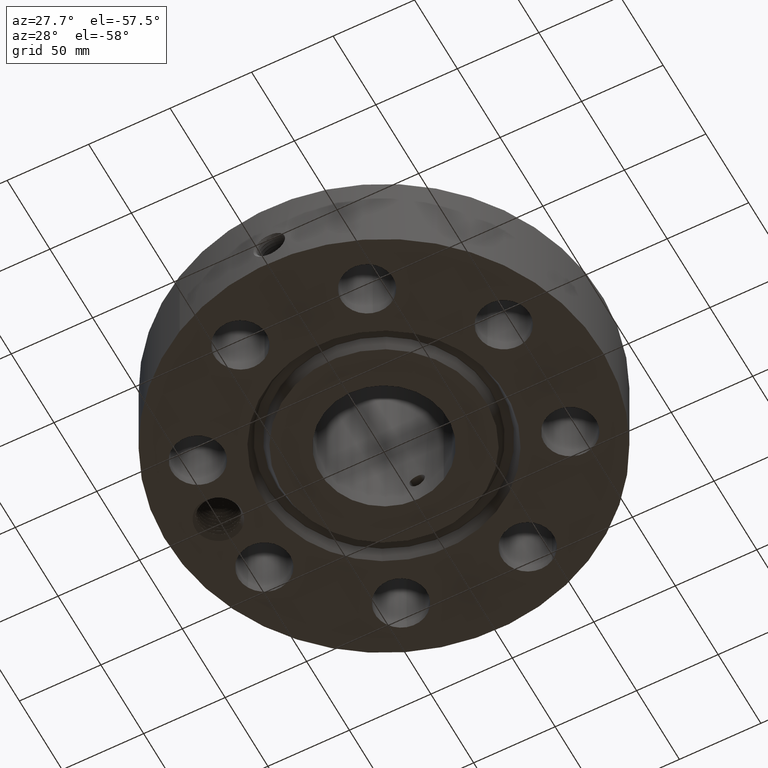
[diagram: clean part render]
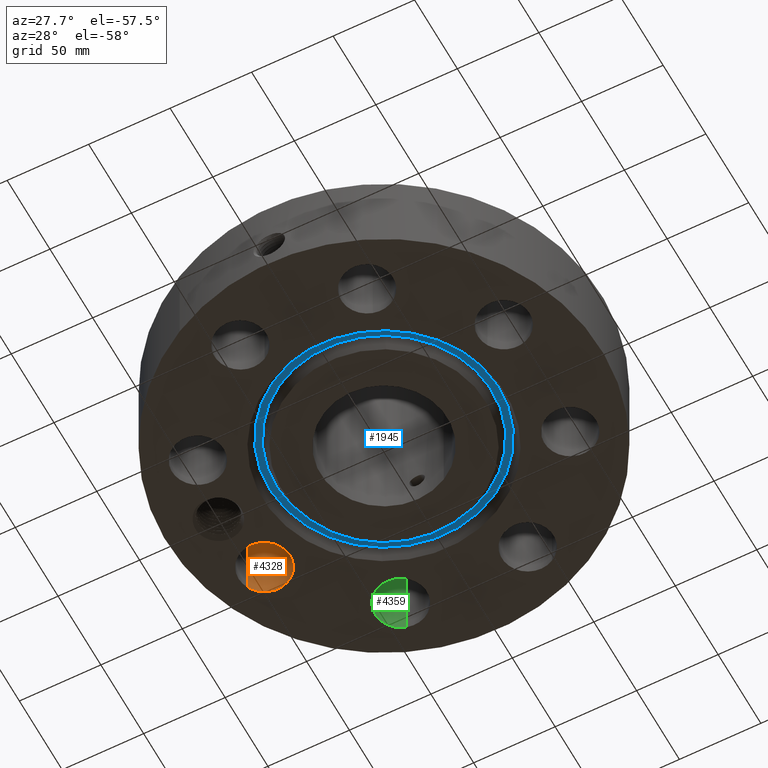
[diagram: same view with three faces highlighted in distinct colors, each labeled with its STEP entity id]
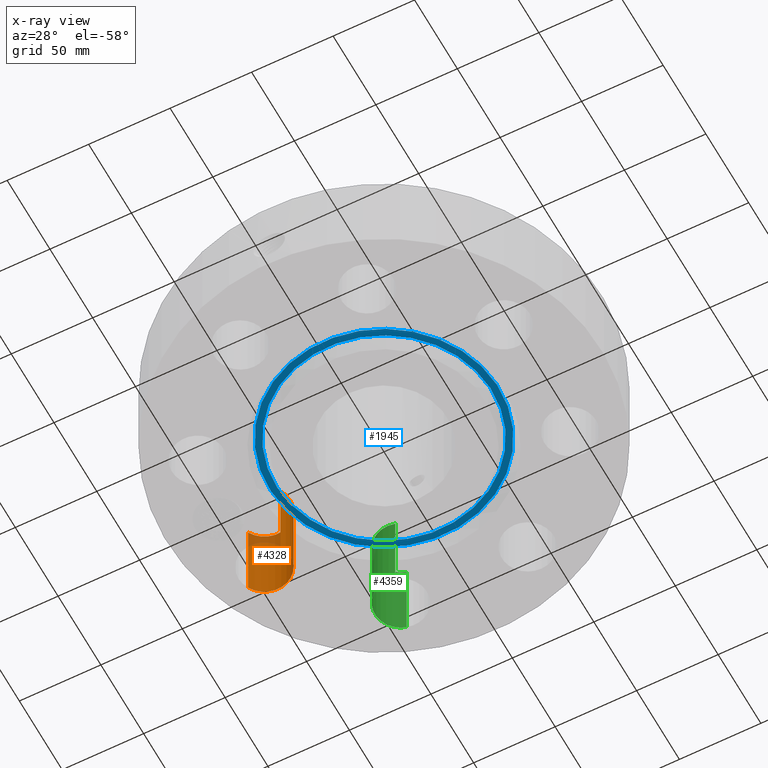
[diagram: x-ray of the same camera — body ghosted, the three highlighted faces saturated]
A machine part, auxiliary view with three faces highlighted in distinct colors.
The next image is the same camera in x-ray (body ghosted, the three faces saturated) — at least one of them is partly hidden behind the body in this view.
Their STEP definitions:

[orange] entity #4328 — the highlighted cylindrical surface (edge-blend (fillet) strip) has radius 15.875 mm, axis along (-0, 0, -1).
#3066=AXIS2_PLACEMENT_3D('Circle Axis2P3D',#3064,#3065,$) ;
#4289=AXIS2_PLACEMENT_3D('Cylinder Axis2P3D',#4286,#4287,#4288) ;
#4319=AXIS2_PLACEMENT_3D('Circle Axis2P3D',#4317,#4318,$) ;
#3064=CARTESIAN_POINT('Axis2P3D Location',(-3.69551813006,1.53073372947,2.19200000001)) ;
#3068=CARTESIAN_POINT('Vertex',(-4.24400723124,1.8303746911,2.19200000001)) ;
#3070=CARTESIAN_POINT('Vertex',(-3.14702902888,1.23109276784,2.19200000001)) ;
#4286=CARTESIAN_POINT('Axis2P3D Location',(-3.69551813006,1.53073372947,2.18806299213)) ;
#4291=CARTESIAN_POINT('Line Origine',(-3.14702902888,1.23109276784,1.096)) ;
#4295=CARTESIAN_POINT('Vertex',(-3.14702902888,1.23109276784,0.)) ;
#4302=CARTESIAN_POINT('Vertex',(-4.24400723124,1.8303746911,0.)) ;
#4305=CARTESIAN_POINT('Line Origine',(-4.24400723124,1.8303746911,1.096)) ;
#4317=CARTESIAN_POINT('Axis2P3D Location',(-3.69551813006,1.53073372947,0.)) ;
#3065=DIRECTION('Axis2P3D Direction',(0.,0.,-0.0393700787402)) ;
#4287=DIRECTION('Axis2P3D Direction',(-0.,0.,-0.0393700787402)) ;
#4288=DIRECTION('Axis2P3D XDirection',(-0.0345504945626,0.0188750212049,0.)) ;
#4292=DIRECTION('Vector Direction',(0.,0.,-0.0393700787402)) ;
#4306=DIRECTION('Vector Direction',(0.,0.,-0.0393700787402)) ;
#4318=DIRECTION('Axis2P3D Direction',(-0.,0.,-0.0393700787402)) ;
#4293=VECTOR('Line Direction',#4292,0.0393700787402) ;
#4307=VECTOR('Line Direction',#4306,0.0393700787402) ;
#4323=ORIENTED_EDGE('',*,*,#4309,.F.) ;
#4324=ORIENTED_EDGE('',*,*,#4321,.T.) ;
#4325=ORIENTED_EDGE('',*,*,#4297,.T.) ;
#4326=ORIENTED_EDGE('',*,*,#3072,.F.) ;
#4328=ADVANCED_FACE('PartBody',(#4327),#4290,.F.) ;
#3067=CIRCLE('generated circle',#3066,0.625000000002) ;
#4320=CIRCLE('generated circle',#4319,0.625000000002) ;
#4290=CYLINDRICAL_SURFACE('generated cylinder',#4289,0.625000000002) ;
#3072=EDGE_CURVE('',#3069,#3071,#3067,.T.) ;
#4297=EDGE_CURVE('',#4296,#3071,#4294,.F.) ;
#4309=EDGE_CURVE('',#4303,#3069,#4308,.F.) ;
#4321=EDGE_CURVE('',#4303,#4296,#4320,.T.) ;
#4322=EDGE_LOOP('',(#4323,#4324,#4325,#4326)) ;
#4327=FACE_OUTER_BOUND('',#4322,.T.) ;
#4294=LINE('Line',#4291,#4293) ;
#4308=LINE('Line',#4305,#4307) ;
#3069=VERTEX_POINT('',#3068) ;
#3071=VERTEX_POINT('',#3070) ;
#4296=VERTEX_POINT('',#4295) ;
#4303=VERTEX_POINT('',#4302) ;

[blue] entity #1945 — the highlighted planar face has unit normal (0, 0, 1).
#1425=AXIS2_PLACEMENT_3D('Circle Axis2P3D',#1423,#1424,$) ;
#1451=AXIS2_PLACEMENT_3D('Circle Axis2P3D',#1449,#1450,$) ;
#1921=AXIS2_PLACEMENT_3D('Plane Axis2P3D',#1918,#1919,#1920) ;
#1925=AXIS2_PLACEMENT_3D('Circle Axis2P3D',#1923,#1924,$) ;
#1934=AXIS2_PLACEMENT_3D('Circle Axis2P3D',#1932,#1933,$) ;
#1423=CARTESIAN_POINT('Axis2P3D Location',(0.,0.,0.312000000001)) ;
#1427=CARTESIAN_POINT('Vertex',(1.24904386048,-2.28635945048,0.312000000001)) ;
#1429=CARTESIAN_POINT('Vertex',(-1.24904386048,2.28635945048,0.312000000001)) ;
#1449=CARTESIAN_POINT('Axis2P3D Location',(0.,0.,0.312000000001)) ;
#1918=CARTESIAN_POINT('Axis2P3D Location',(0.,2.6052927095,0.312000000001)) ;
#1923=CARTESIAN_POINT('Axis2P3D Location',(0.,0.,0.312000000001)) ;
#1927=CARTESIAN_POINT('Vertex',(-1.32786840953,2.4306468197,0.312000000001)) ;
#1929=CARTESIAN_POINT('Vertex',(1.32786840953,-2.4306468197,0.312000000001)) ;
#1932=CARTESIAN_POINT('Axis2P3D Location',(0.,0.,0.312000000001)) ;
#1424=DIRECTION('Axis2P3D Direction',(0.,0.,0.0393700787402)) ;
#1450=DIRECTION('Axis2P3D Direction',(0.,0.,0.0393700787402)) ;
#1919=DIRECTION('Axis2P3D Direction',(0.,0.,0.0393700787402)) ;
#1920=DIRECTION('Axis2P3D XDirection',(0.0393700787402,0.,0.)) ;
#1924=DIRECTION('Axis2P3D Direction',(0.,0.,0.0393700787402)) ;
#1933=DIRECTION('Axis2P3D Direction',(0.,0.,0.0393700787402)) ;
#1938=ORIENTED_EDGE('',*,*,#1931,.F.) ;
#1939=ORIENTED_EDGE('',*,*,#1936,.F.) ;
#1942=ORIENTED_EDGE('',*,*,#1431,.T.) ;
#1943=ORIENTED_EDGE('',*,*,#1453,.T.) ;
#1944=FACE_BOUND('',#1941,.T.) ;
#1945=ADVANCED_FACE('PartBody',(#1940,#1944),#1922,.F.) ;
#1426=CIRCLE('generated circle',#1425,2.6052927095) ;
#1452=CIRCLE('generated circle',#1451,2.6052927095) ;
#1926=CIRCLE('generated circle',#1925,2.76970729052) ;
#1935=CIRCLE('generated circle',#1934,2.76970729052) ;
#1431=EDGE_CURVE('',#1428,#1430,#1426,.T.) ;
#1453=EDGE_CURVE('',#1430,#1428,#1452,.T.) ;
#1931=EDGE_CURVE('',#1928,#1930,#1926,.T.) ;
#1936=EDGE_CURVE('',#1930,#1928,#1935,.T.) ;
#1937=EDGE_LOOP('',(#1938,#1939)) ;
#1941=EDGE_LOOP('',(#1942,#1943)) ;
#1940=FACE_OUTER_BOUND('',#1937,.T.) ;
#1922=PLANE('',#1921) ;
#1428=VERTEX_POINT('',#1427) ;
#1430=VERTEX_POINT('',#1429) ;
#1928=VERTEX_POINT('',#1927) ;
#1930=VERTEX_POINT('',#1929) ;

[green] entity #4359 — the highlighted cylindrical surface (edge-blend (fillet) strip) has radius 15.875 mm, axis along (0, 0, -1).
#3093=AXIS2_PLACEMENT_3D('Circle Axis2P3D',#3091,#3092,$) ;
#4332=AXIS2_PLACEMENT_3D('Cylinder Axis2P3D',#4329,#4330,#4331) ;
#4343=AXIS2_PLACEMENT_3D('Circle Axis2P3D',#4341,#4342,$) ;
#3086=CARTESIAN_POINT('Vertex',(-1.70669593643,4.2952366488,2.19200000001)) ;
#3088=CARTESIAN_POINT('Vertex',(-1.3547715225,3.09579961132,2.19200000001)) ;
#3091=CARTESIAN_POINT('Axis2P3D Location',(-1.53073372947,3.69551813006,2.19200000001)) ;
#4329=CARTESIAN_POINT('Axis2P3D Location',(-1.53073372947,3.69551813006,2.18806299213)) ;
#4334=CARTESIAN_POINT('Line Origine',(-1.3547715225,3.09579961132,1.096)) ;
#4338=CARTESIAN_POINT('Vertex',(-1.3547715225,3.09579961132,0.)) ;
#4341=CARTESIAN_POINT('Axis2P3D Location',(-1.53073372947,3.69551813006,0.)) ;
#4345=CARTESIAN_POINT('Vertex',(-1.70669593643,4.2952366488,0.)) ;
#4348=CARTESIAN_POINT('Line Origine',(-1.70669593643,4.2952366488,1.096)) ;
#3092=DIRECTION('Axis2P3D Direction',(0.,0.,-0.0393700787402)) ;
#4330=DIRECTION('Axis2P3D Direction',(0.,0.,-0.0393700787402)) ;
#4331=DIRECTION('Axis2P3D XDirection',(-0.0110842335096,0.0377775444876,0.)) ;
#4335=DIRECTION('Vector Direction',(0.,0.,-0.0393700787402)) ;
#4342=DIRECTION('Axis2P3D Direction',(0.,0.,-0.0393700787402)) ;
#4349=DIRECTION('Vector Direction',(0.,0.,-0.0393700787402)) ;
#4336=VECTOR('Line Direction',#4335,0.0393700787402) ;
#4350=VECTOR('Line Direction',#4349,0.0393700787402) ;
#4354=ORIENTED_EDGE('',*,*,#4340,.F.) ;
#4355=ORIENTED_EDGE('',*,*,#4347,.T.) ;
#4356=ORIENTED_EDGE('',*,*,#4352,.T.) ;
#4357=ORIENTED_EDGE('',*,*,#3095,.F.) ;
#4359=ADVANCED_FACE('PartBody',(#4358),#4333,.F.) ;
#3094=CIRCLE('generated circle',#3093,0.625000000003) ;
#4344=CIRCLE('generated circle',#4343,0.625000000003) ;
#4333=CYLINDRICAL_SURFACE('generated cylinder',#4332,0.625000000003) ;
#3095=EDGE_CURVE('',#3089,#3087,#3094,.T.) ;
#4340=EDGE_CURVE('',#4339,#3089,#4337,.F.) ;
#4347=EDGE_CURVE('',#4339,#4346,#4344,.T.) ;
#4352=EDGE_CURVE('',#4346,#3087,#4351,.F.) ;
#4353=EDGE_LOOP('',(#4354,#4355,#4356,#4357)) ;
#4358=FACE_OUTER_BOUND('',#4353,.T.) ;
#4337=LINE('Line',#4334,#4336) ;
#4351=LINE('Line',#4348,#4350) ;
#3087=VERTEX_POINT('',#3086) ;
#3089=VERTEX_POINT('',#3088) ;
#4339=VERTEX_POINT('',#4338) ;
#4346=VERTEX_POINT('',#4345) ;